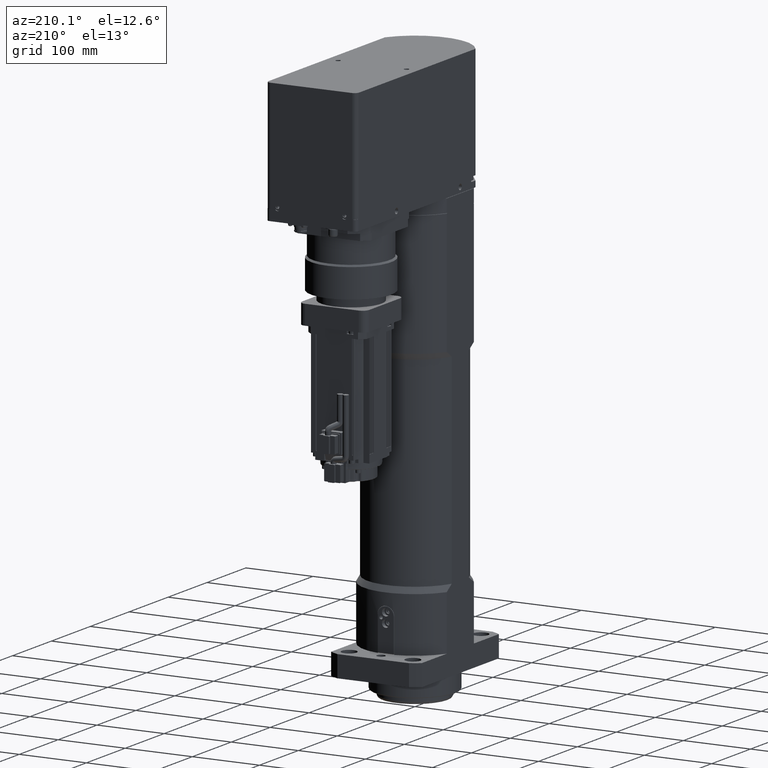
[diagram: clean part render]
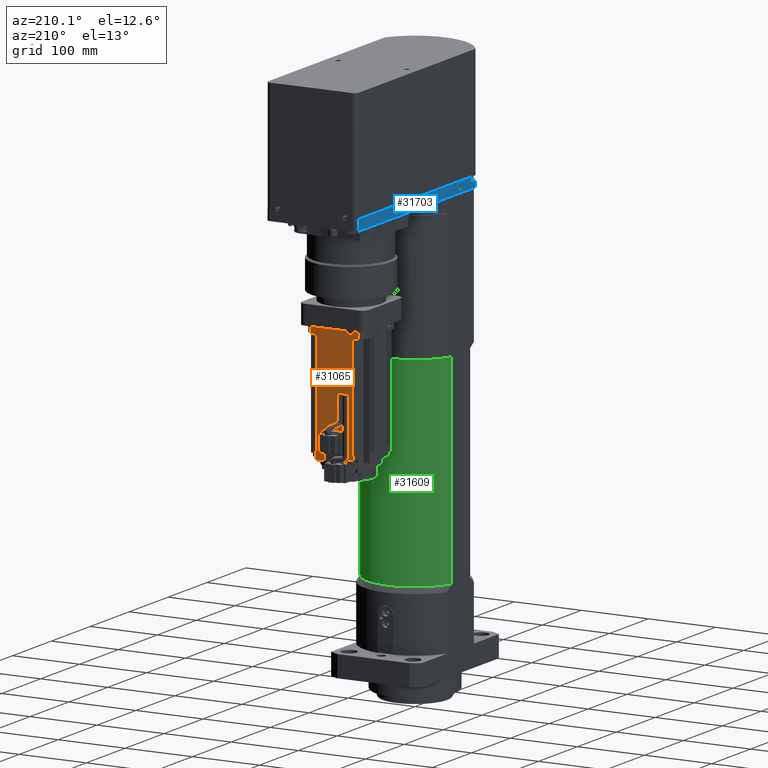
[diagram: same view with three faces highlighted in distinct colors, each labeled with its STEP entity id]
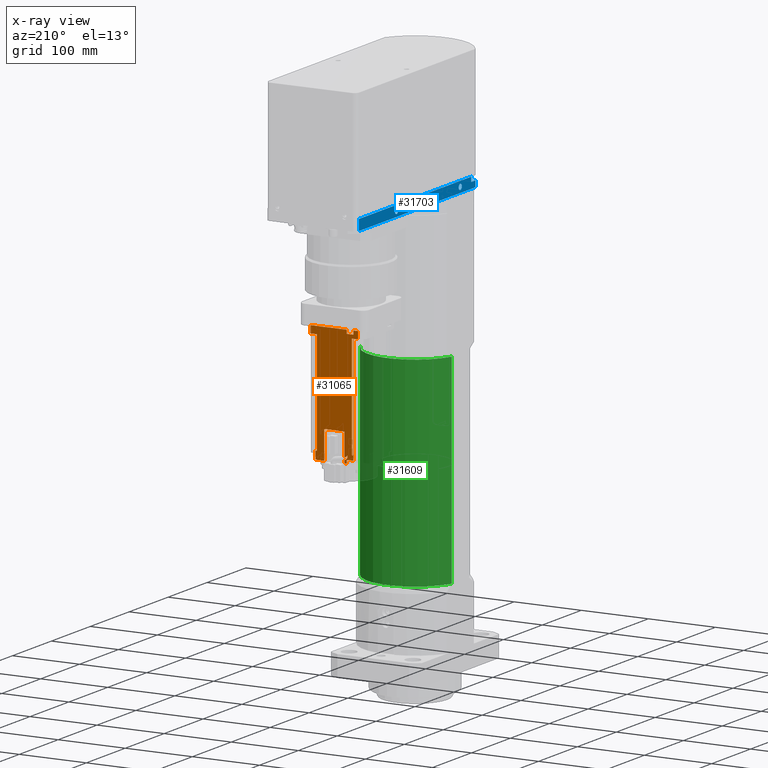
[diagram: x-ray of the same camera — body ghosted, the three highlighted faces saturated]
A machine part, auxiliary view with three faces highlighted in distinct colors.
The next image is the same camera in x-ray (body ghosted, the three faces saturated) — at least one of them is partly hidden behind the body in this view.
Their STEP definitions:

[orange] entity #31065 — the highlighted planar face has unit normal (-0, 1, -0).
#189=ELLIPSE('',#32938,31.9406149128375,4.);
#191=ELLIPSE('',#32940,31.9406149128375,4.);
#494=FACE_BOUND('',#9634,.T.);
#495=FACE_BOUND('',#9635,.T.);
#496=FACE_BOUND('',#9636,.T.);
#1019=PLANE('',#32954);
#2254=LINE('',#51590,#4882);
#2257=LINE('',#51601,#4885);
#2259=LINE('',#51604,#4887);
#2597=LINE('',#52501,#5225);
#2602=LINE('',#52516,#5230);
#2607=LINE('',#52531,#5235);
#2612=LINE('',#52546,#5240);
#2616=LINE('',#52554,#5244);
#2618=LINE('',#52557,#5246);
#2620=LINE('',#52561,#5248);
#2622=LINE('',#52564,#5250);
#2628=LINE('',#52645,#5256);
#2629=LINE('',#52647,#5257);
#2630=LINE('',#52649,#5258);
#2631=LINE('',#52651,#5259);
#2632=LINE('',#52653,#5260);
#2633=LINE('',#52655,#5261);
#2634=LINE('',#52657,#5262);
#2635=LINE('',#52661,#5263);
#2636=LINE('',#52665,#5264);
#2637=LINE('',#52669,#5265);
#2638=LINE('',#52673,#5266);
#2639=LINE('',#52674,#5267);
#2640=LINE('',#52675,#5268);
#2641=LINE('',#52677,#5269);
#2642=LINE('',#52679,#5270);
#2643=LINE('',#52681,#5271);
#2644=LINE('',#52683,#5272);
#2645=LINE('',#52685,#5273);
#2646=LINE('',#52687,#5274);
#2647=LINE('',#52689,#5275);
#2648=LINE('',#52690,#5276);
#2649=LINE('',#52691,#5277);
#4882=VECTOR('',#36352,10.);
#4885=VECTOR('',#36363,10.);
#4887=VECTOR('',#36367,10.);
#5225=VECTOR('',#37239,10.);
#5230=VECTOR('',#37252,10.);
#5235=VECTOR('',#37265,10.);
#5240=VECTOR('',#37278,10.);
#5244=VECTOR('',#37286,10.);
#5246=VECTOR('',#37290,10.);
#5248=VECTOR('',#37296,10.);
#5250=VECTOR('',#37300,10.);
#5256=VECTOR('',#37384,10.);
#5257=VECTOR('',#37385,10.);
#5258=VECTOR('',#37386,10.);
#5259=VECTOR('',#37387,10.);
#5260=VECTOR('',#37388,10.);
#5261=VECTOR('',#37389,10.);
#5262=VECTOR('',#37390,10.);
#5263=VECTOR('',#37393,10.);
#5264=VECTOR('',#37396,10.);
#5265=VECTOR('',#37399,10.);
#5266=VECTOR('',#37402,10.);
#5267=VECTOR('',#37403,10.);
#5268=VECTOR('',#37404,10.);
#5269=VECTOR('',#37405,10.);
#5270=VECTOR('',#37406,10.);
#5271=VECTOR('',#37407,10.);
#5272=VECTOR('',#37408,10.);
#5273=VECTOR('',#37409,10.);
#5274=VECTOR('',#37410,10.);
#5275=VECTOR('',#37411,10.);
#5276=VECTOR('',#37412,10.);
#5277=VECTOR('',#37413,10.);
#7866=FACE_OUTER_BOUND('',#9633,.T.);
#9633=EDGE_LOOP('',(#23000,#23001,#23002,#23003,#23004,#23005,#23006,#23007,
#23008,#23009,#23010,#23011,#23012,#23013,#23014,#23015,#23016,#23017,#23018,
#23019,#23020,#23021,#23022,#23023,#23024,#23025,#23026,#23027,#23028,#23029,
#23030,#23031,#23032));
#9634=EDGE_LOOP('',(#23033,#23034,#23035,#23036));
#9635=EDGE_LOOP('',(#23037,#23038,#23039,#23040));
#9636=EDGE_LOOP('',(#23041,#23042));
#10911=B_SPLINE_CURVE_WITH_KNOTS('',3,(#42578,#42579,#42580,#42581,#42582,
#42583,#42584,#42585,#42586,#42587,#42588,#42589),.UNSPECIFIED.,.F.,.F.,
(4,2,2,2,2,4),(1.19263499991973,1.24503714380853,1.35520784818935,1.48344915877361,
1.5595970402577,1.63574492174179),.UNSPECIFIED.);
#11213=B_SPLINE_CURVE_WITH_KNOTS('',3,(#52615,#52616,#52617,#52618,#52619,
#52620,#52621,#52622,#52623,#52624,#52625,#52626,#52627,#52628,#52629,#52630,
#52631,#52632),.UNSPECIFIED.,.F.,.F.,(4,2,2,2,2,2,2,2,4),(0.,0.0880148905567986,
0.176029781113597,0.273796558298388,0.371563335483179,0.479081764201681,
0.586600192920183,0.701484602093177,0.707399671797435),.UNSPECIFIED.);
#11805=CIRCLE('',#32955,1.);
#11806=CIRCLE('',#32956,1.);
#11807=CIRCLE('',#32957,1.);
#11808=CIRCLE('',#32958,1.);
#12595=VERTEX_POINT('',#42575);
#12596=VERTEX_POINT('',#42577);
#12599=VERTEX_POINT('',#42595);
#12602=VERTEX_POINT('',#42603);
#12603=VERTEX_POINT('',#42605);
#13407=VERTEX_POINT('',#51584);
#13409=VERTEX_POINT('',#51588);
#13412=VERTEX_POINT('',#51598);
#13413=VERTEX_POINT('',#51600);
#13702=VERTEX_POINT('',#52494);
#13705=VERTEX_POINT('',#52499);
#13708=VERTEX_POINT('',#52509);
#13711=VERTEX_POINT('',#52514);
#13714=VERTEX_POINT('',#52524);
#13717=VERTEX_POINT('',#52529);
#13720=VERTEX_POINT('',#52539);
#13723=VERTEX_POINT('',#52544);
#13734=VERTEX_POINT('',#52598);
#13735=VERTEX_POINT('',#52600);
#13736=VERTEX_POINT('',#52602);
#13743=VERTEX_POINT('',#52644);
#13744=VERTEX_POINT('',#52646);
#13745=VERTEX_POINT('',#52648);
#13746=VERTEX_POINT('',#52650);
#13747=VERTEX_POINT('',#52652);
#13748=VERTEX_POINT('',#52654);
#13749=VERTEX_POINT('',#52656);
#13750=VERTEX_POINT('',#52658);
#13751=VERTEX_POINT('',#52660);
#13752=VERTEX_POINT('',#52662);
#13753=VERTEX_POINT('',#52664);
#13754=VERTEX_POINT('',#52666);
#13755=VERTEX_POINT('',#52668);
#13756=VERTEX_POINT('',#52670);
#13757=VERTEX_POINT('',#52672);
#13758=VERTEX_POINT('',#52676);
#13759=VERTEX_POINT('',#52678);
#13760=VERTEX_POINT('',#52680);
#13761=VERTEX_POINT('',#52682);
#13762=VERTEX_POINT('',#52684);
#13763=VERTEX_POINT('',#52686);
#13764=VERTEX_POINT('',#52688);
#15486=EDGE_CURVE('',#12596,#12595,#10911,.T.);
#16653=EDGE_CURVE('',#13407,#13409,#2254,.T.);
#16658=EDGE_CURVE('',#13413,#13412,#2257,.T.);
#16660=EDGE_CURVE('',#13409,#13413,#2259,.T.);
#17096=EDGE_CURVE('',#13705,#13702,#2597,.T.);
#17103=EDGE_CURVE('',#13711,#13708,#2602,.T.);
#17110=EDGE_CURVE('',#13717,#13714,#2607,.T.);
#17117=EDGE_CURVE('',#13723,#13720,#2612,.T.);
#17121=EDGE_CURVE('',#13705,#13708,#2616,.T.);
#17123=EDGE_CURVE('',#13711,#13702,#2618,.T.);
#17125=EDGE_CURVE('',#13723,#13714,#2620,.T.);
#17127=EDGE_CURVE('',#13717,#13720,#2622,.T.);
#17144=EDGE_CURVE('',#13734,#12596,#189,.T.);
#17146=EDGE_CURVE('',#13736,#13735,#191,.T.);
#17153=EDGE_CURVE('',#12595,#13736,#11213,.T.);
#17159=EDGE_CURVE('',#13743,#13412,#2628,.T.);
#17160=EDGE_CURVE('',#13743,#13744,#2629,.T.);
#17161=EDGE_CURVE('',#13744,#13745,#2630,.T.);
#17162=EDGE_CURVE('',#13745,#13746,#2631,.T.);
#17163=EDGE_CURVE('',#13747,#13746,#2632,.T.);
#17164=EDGE_CURVE('',#13747,#13748,#2633,.T.);
#17165=EDGE_CURVE('',#13749,#13748,#2634,.T.);
#17166=EDGE_CURVE('',#13749,#13750,#11805,.T.);
#17167=EDGE_CURVE('',#13750,#13751,#2635,.T.);
#17168=EDGE_CURVE('',#13752,#13751,#11806,.F.);
#17169=EDGE_CURVE('',#13752,#13753,#2636,.T.);
#17170=EDGE_CURVE('',#13754,#13753,#11807,.F.);
#17171=EDGE_CURVE('',#13754,#13755,#2637,.T.);
#17172=EDGE_CURVE('',#13755,#13756,#11808,.T.);
#17173=EDGE_CURVE('',#13757,#13756,#2638,.T.);
#17174=EDGE_CURVE('',#13734,#13757,#2639,.T.);
#17175=EDGE_CURVE('',#12595,#12599,#2640,.T.);
#17176=EDGE_CURVE('',#13758,#13735,#2641,.T.);
#17177=EDGE_CURVE('',#13759,#13758,#2642,.T.);
#17178=EDGE_CURVE('',#13759,#13760,#2643,.T.);
#17179=EDGE_CURVE('',#13760,#13761,#2644,.T.);
#17180=EDGE_CURVE('',#13761,#13762,#2645,.T.);
#17181=EDGE_CURVE('',#13762,#13763,#2646,.T.);
#17182=EDGE_CURVE('',#13764,#13763,#2647,.T.);
#17183=EDGE_CURVE('',#13407,#13764,#2648,.T.);
#17184=EDGE_CURVE('',#12603,#12602,#2649,.T.);
#23000=ORIENTED_EDGE('',*,*,#16658,.T.);
#23001=ORIENTED_EDGE('',*,*,#17159,.F.);
#23002=ORIENTED_EDGE('',*,*,#17160,.T.);
#23003=ORIENTED_EDGE('',*,*,#17161,.T.);
#23004=ORIENTED_EDGE('',*,*,#17162,.T.);
#23005=ORIENTED_EDGE('',*,*,#17163,.F.);
#23006=ORIENTED_EDGE('',*,*,#17164,.T.);
#23007=ORIENTED_EDGE('',*,*,#17165,.F.);
#23008=ORIENTED_EDGE('',*,*,#17166,.T.);
#23009=ORIENTED_EDGE('',*,*,#17167,.T.);
#23010=ORIENTED_EDGE('',*,*,#17168,.F.);
#23011=ORIENTED_EDGE('',*,*,#17169,.T.);
#23012=ORIENTED_EDGE('',*,*,#17170,.F.);
#23013=ORIENTED_EDGE('',*,*,#17171,.T.);
#23014=ORIENTED_EDGE('',*,*,#17172,.T.);
#23015=ORIENTED_EDGE('',*,*,#17173,.F.);
#23016=ORIENTED_EDGE('',*,*,#17174,.F.);
#23017=ORIENTED_EDGE('',*,*,#17144,.T.);
#23018=ORIENTED_EDGE('',*,*,#15486,.T.);
#23019=ORIENTED_EDGE('',*,*,#17175,.T.);
#23020=ORIENTED_EDGE('',*,*,#17175,.F.);
#23021=ORIENTED_EDGE('',*,*,#17153,.T.);
#23022=ORIENTED_EDGE('',*,*,#17146,.T.);
#23023=ORIENTED_EDGE('',*,*,#17176,.F.);
#23024=ORIENTED_EDGE('',*,*,#17177,.F.);
#23025=ORIENTED_EDGE('',*,*,#17178,.T.);
#23026=ORIENTED_EDGE('',*,*,#17179,.T.);
#23027=ORIENTED_EDGE('',*,*,#17180,.T.);
#23028=ORIENTED_EDGE('',*,*,#17181,.T.);
#23029=ORIENTED_EDGE('',*,*,#17182,.F.);
#23030=ORIENTED_EDGE('',*,*,#17183,.F.);
#23031=ORIENTED_EDGE('',*,*,#16653,.T.);
#23032=ORIENTED_EDGE('',*,*,#16660,.T.);
#23033=ORIENTED_EDGE('',*,*,#17121,.T.);
#23034=ORIENTED_EDGE('',*,*,#17103,.F.);
#23035=ORIENTED_EDGE('',*,*,#17123,.T.);
#23036=ORIENTED_EDGE('',*,*,#17096,.F.);
#23037=ORIENTED_EDGE('',*,*,#17127,.T.);
#23038=ORIENTED_EDGE('',*,*,#17117,.F.);
#23039=ORIENTED_EDGE('',*,*,#17125,.T.);
#23040=ORIENTED_EDGE('',*,*,#17110,.F.);
#23041=ORIENTED_EDGE('',*,*,#17184,.T.);
#23042=ORIENTED_EDGE('',*,*,#17184,.F.);
#31065=ADVANCED_FACE('',(#7866,#494,#495,#496),#1019,.T.);
#32938=AXIS2_PLACEMENT_3D('',#52599,#37348,#37349);
#32940=AXIS2_PLACEMENT_3D('',#52603,#37352,#37353);
#32954=AXIS2_PLACEMENT_3D('',#52643,#37382,#37383);
#32955=AXIS2_PLACEMENT_3D('',#52659,#37391,#37392);
#32956=AXIS2_PLACEMENT_3D('',#52663,#37394,#37395);
#32957=AXIS2_PLACEMENT_3D('',#52667,#37397,#37398);
#32958=AXIS2_PLACEMENT_3D('',#52671,#37400,#37401);
#36352=DIRECTION('',(-3.6975655217387E-18,-5.0752191982747E-16,-1.));
#36363=DIRECTION('',(3.6975655217387E-18,5.0752191982747E-16,1.));
#36367=DIRECTION('',(1.,1.22124532708767E-15,-3.69756552173932E-18));
#37239=DIRECTION('',(-3.49741105664645E-16,-5.0752191982747E-16,-1.));
#37252=DIRECTION('',(2.34393258950343E-16,5.0752191982747E-16,1.));
#37265=DIRECTION('',(-6.13714888788897E-17,-5.0752191982747E-16,-1.));
#37278=DIRECTION('',(1.91137816432479E-16,5.0752191982747E-16,1.));
#37286=DIRECTION('',(-1.,-1.22124532708767E-15,3.69756552173932E-18));
#37290=DIRECTION('',(1.,1.22124532708767E-15,-3.69756552173932E-18));
#37296=DIRECTION('',(1.,1.22124532708767E-15,-3.69756552173932E-18));
#37300=DIRECTION('',(-1.,-1.22124532708767E-15,3.69756552173932E-18));
#37348=DIRECTION('center_axis',(1.22124532708767E-15,-1.,5.0752191982747E-16));
#37349=DIRECTION('ref_axis',(-0.984563797115537,-1.11356436324824E-15,0.175026082083318));
#37352=DIRECTION('center_axis',(1.22124532708767E-15,-1.,5.0752191982747E-16));
#37353=DIRECTION('ref_axis',(-0.984563797115537,-1.11356436324824E-15,0.175026082083318));
#37382=DIRECTION('center_axis',(-1.22124532708767E-15,1.,-5.0752191982747E-16));
#37383=DIRECTION('ref_axis',(1.,1.22124532708767E-15,-3.69756552173932E-18));
#37384=DIRECTION('',(-1.,-1.22124532708767E-15,4.40599034905589E-33));
#37385=DIRECTION('',(-3.6975655217387E-18,-5.0752191982747E-16,-1.));
#37386=DIRECTION('',(-1.,-1.22124532708767E-15,3.69756552173932E-18));
#37387=DIRECTION('',(-3.6975655217387E-18,-5.0752191982747E-16,-1.));
#37388=DIRECTION('',(1.,1.22124532708767E-15,-3.69756552173932E-18));
#37389=DIRECTION('',(3.6975655217387E-18,5.0752191982747E-16,1.));
#37390=DIRECTION('',(1.,1.22124532708767E-15,-3.69756552173932E-18));
#37391=DIRECTION('center_axis',(1.22124532708767E-15,-1.,5.0752191982747E-16));
#37392=DIRECTION('ref_axis',(0.707106781186543,5.04678661165249E-16,-0.707106781186552));
#37393=DIRECTION('',(3.6975655217387E-18,5.0752191982747E-16,1.));
#37394=DIRECTION('center_axis',(1.22124532708767E-15,-1.,5.0752191982747E-16));
#37395=DIRECTION('ref_axis',(0.707106781186543,1.22242304338689E-15,0.707106781186552));
#37396=DIRECTION('',(-1.,-1.22124532708767E-15,3.69756552173932E-18));
#37397=DIRECTION('center_axis',(1.22124532708767E-15,-1.,5.0752191982747E-16));
#37398=DIRECTION('ref_axis',(-0.707106781186555,-5.0467866116527E-16,0.70710678118654));
#37399=DIRECTION('',(-3.6975655217387E-18,-5.0752191982747E-16,-1.));
#37400=DIRECTION('center_axis',(1.22124532708767E-15,-1.,5.0752191982747E-16));
#37401=DIRECTION('ref_axis',(-0.707106781186543,-1.22242304338689E-15,-0.707106781186552));
#37402=DIRECTION('',(1.,1.22124532708767E-15,-3.69756552173932E-18));
#37403=DIRECTION('',(3.6975655217387E-18,5.0752191982747E-16,1.));
#37404=DIRECTION('',(-1.81339605249121E-16,4.93644132019655E-16,1.));
#37405=DIRECTION('',(3.6975655217387E-18,5.0752191982747E-16,1.));
#37406=DIRECTION('',(1.,1.22124532708767E-15,-3.69756552173932E-18));
#37407=DIRECTION('',(3.6975655217387E-18,5.0752191982747E-16,1.));
#37408=DIRECTION('',(-1.,-1.22124532708767E-15,3.69756552173932E-18));
#37409=DIRECTION('',(3.6975655217387E-18,5.0752191982747E-16,1.));
#37410=DIRECTION('',(-1.,-1.22124532708767E-15,3.69756552173932E-18));
#37411=DIRECTION('',(-3.6975655217387E-18,-5.0752191982747E-16,-1.));
#37412=DIRECTION('',(-1.,-1.22124532708767E-15,4.40599034905589E-33));
#37413=DIRECTION('',(2.2574217044677E-16,2.02210588055553E-16,1.));
#42575=CARTESIAN_POINT('',(-19.4999999999999,207.500000000001,322.01841516383));
#42577=CARTESIAN_POINT('',(-15.9290661427965,207.500000000001,319.469747254434));
#42578=CARTESIAN_POINT('Ctrl Pts',(-15.9290661427965,207.500000000001,319.469747254434));
#42579=CARTESIAN_POINT('Ctrl Pts',(-16.1194849693922,207.500000000001,319.457868810944));
#42580=CARTESIAN_POINT('Ctrl Pts',(-16.3128356612516,207.500000000001,319.464864778397));
#42581=CARTESIAN_POINT('Ctrl Pts',(-16.8511160293875,207.500000000001,319.527475841464));
#42582=CARTESIAN_POINT('Ctrl Pts',(-17.2725198156159,207.500000000001,319.656395175206));
#42583=CARTESIAN_POINT('Ctrl Pts',(-17.9833269478442,207.500000000001,320.011799151131));
#42584=CARTESIAN_POINT('Ctrl Pts',(-18.3899995321538,207.500000000001,320.324450312998));
#42585=CARTESIAN_POINT('Ctrl Pts',(-18.8489897598896,207.500000000001,320.82793218082));
#42586=CARTESIAN_POINT('Ctrl Pts',(-19.0159614894133,207.500000000001,321.050495885969));
#42587=CARTESIAN_POINT('Ctrl Pts',(-19.2987244799724,207.500000000001,321.526255524562));
#42588=CARTESIAN_POINT('Ctrl Pts',(-19.4146619059347,207.500000000001,321.779364571146));
#42589=CARTESIAN_POINT('Ctrl Pts',(-19.4999999999999,207.500000000001,322.01841516383));
#42595=CARTESIAN_POINT('',(-19.4999999999999,207.500000000001,403.));
#42603=CARTESIAN_POINT('',(-10.9999999999999,207.500000000001,403.));
#42605=CARTESIAN_POINT('',(-10.9999999999999,207.500000000001,367.226873989828));
#51584=CARTESIAN_POINT('',(-28.5,207.500000000001,488.));
#51588=CARTESIAN_POINT('',(-28.5,207.500000000001,482.5));
#51590=CARTESIAN_POINT('',(-28.5,207.500000000001,488.));
#51598=CARTESIAN_POINT('',(-18.5,207.500000000001,488.));
#51600=CARTESIAN_POINT('',(-18.5,207.500000000001,482.5));
#51601=CARTESIAN_POINT('',(-18.5,207.500000000001,488.));
#51604=CARTESIAN_POINT('',(-29.3834199745824,207.500000000001,482.5));
#52494=CARTESIAN_POINT('',(27.7999999999999,207.500000000001,323.));
#52499=CARTESIAN_POINT('',(27.8,207.500000000001,477.));
#52501=CARTESIAN_POINT('',(27.8,207.500000000001,405.5));
#52509=CARTESIAN_POINT('',(26.2,207.500000000001,477.));
#52514=CARTESIAN_POINT('',(26.2,207.500000000001,323.));
#52516=CARTESIAN_POINT('',(26.2,207.500000000001,482.5));
#52524=CARTESIAN_POINT('',(-26.2,207.500000000001,323.));
#52529=CARTESIAN_POINT('',(-26.2,207.500000000001,477.));
#52531=CARTESIAN_POINT('',(-26.2,207.500000000001,405.5));
#52539=CARTESIAN_POINT('',(-27.8,207.500000000001,477.));
#52544=CARTESIAN_POINT('',(-27.8,207.500000000001,323.));
#52546=CARTESIAN_POINT('',(-27.8,207.500000000001,482.5));
#52554=CARTESIAN_POINT('',(-3.88341997458236,207.500000000001,477.));
#52557=CARTESIAN_POINT('',(-4.38341997458238,207.500000000001,323.));
#52561=CARTESIAN_POINT('',(-31.3834199745824,207.500000000001,323.));
#52564=CARTESIAN_POINT('',(-30.8834199745824,207.500000000001,477.));
#52598=CARTESIAN_POINT('',(-15.,207.500000000001,319.51308617736));
#52599=CARTESIAN_POINT('Origin',(11.6999999999997,207.500000000001,312.696037250357));
#52600=CARTESIAN_POINT('',(-15.,207.500000000001,315.218407978185));
#52602=CARTESIAN_POINT('',(-16.57083163283,207.500000000001,315.859662059107));
#52603=CARTESIAN_POINT('Origin',(11.6999999999997,207.500000000001,312.696037250357));
#52615=CARTESIAN_POINT('Ctrl Pts',(-19.4999999999999,207.500000000001,322.01841516383));
#52616=CARTESIAN_POINT('Ctrl Pts',(-19.5986373207379,207.500000000001,321.742110539951));
#52617=CARTESIAN_POINT('Ctrl Pts',(-19.6758497435552,207.500000000001,321.430112915903));
#52618=CARTESIAN_POINT('Ctrl Pts',(-19.7586019323076,207.500000000001,320.796395260153));
#52619=CARTESIAN_POINT('Ctrl Pts',(-19.7643194165959,207.500000000001,320.474698447961));
#52620=CARTESIAN_POINT('Ctrl Pts',(-19.7187664448801,207.500000000001,319.857103907488));
#52621=CARTESIAN_POINT('Ctrl Pts',(-19.6565111918375,207.500000000001,319.505562926837));
#52622=CARTESIAN_POINT('Ctrl Pts',(-19.4536784269623,207.500000000001,318.825501239917));
#52623=CARTESIAN_POINT('Ctrl Pts',(-19.3132304292346,207.500000000001,318.496941911949));
#52624=CARTESIAN_POINT('Ctrl Pts',(-18.9867761906889,207.500000000001,317.895549985065));
#52625=CARTESIAN_POINT('Ctrl Pts',(-18.7650497992168,207.500000000001,317.571565587286));
#52626=CARTESIAN_POINT('Ctrl Pts',(-18.252662428232,207.500000000001,316.983201563526));
#52627=CARTESIAN_POINT('Ctrl Pts',(-17.9621003103852,207.500000000001,316.718735849389));
#52628=CARTESIAN_POINT('Ctrl Pts',(-17.3688814381316,207.500000000001,316.274123089458));
#52629=CARTESIAN_POINT('Ctrl Pts',(-17.0093257723278,207.500000000001,316.057968326033));
#52630=CARTESIAN_POINT('Ctrl Pts',(-16.6100771515055,207.500000000001,315.877046542367));
#52631=CARTESIAN_POINT('Ctrl Pts',(-16.5904769616716,207.500000000001,315.868297974594));
#52632=CARTESIAN_POINT('Ctrl Pts',(-16.57083163283,207.500000000001,315.859662059107));
#52643=CARTESIAN_POINT('Origin',(-35.2668399491647,207.500000000001,488.));
#52644=CARTESIAN_POINT('',(35.2668399491647,207.500000000001,488.));
#52645=CARTESIAN_POINT('',(-17.6334199745824,207.500000000001,488.));
#52646=CARTESIAN_POINT('',(35.2668399491647,207.500000000001,477.));
#52647=CARTESIAN_POINT('',(35.2668399491647,207.500000000001,488.));
#52648=CARTESIAN_POINT('',(28.5,207.500000000001,477.));
#52649=CARTESIAN_POINT('',(0.366580025417631,207.500000000001,477.));
#52650=CARTESIAN_POINT('',(28.5,207.500000000001,311.));
#52651=CARTESIAN_POINT('',(28.5,207.500000000001,399.5));
#52652=CARTESIAN_POINT('',(15.,207.500000000001,311.));
#52653=CARTESIAN_POINT('',(-28.5,207.500000000001,311.));
#52654=CARTESIAN_POINT('',(15.,207.500000000001,323.));
#52655=CARTESIAN_POINT('',(15.,207.500000000001,311.));
#52656=CARTESIAN_POINT('',(14.,207.500000000001,323.));
#52657=CARTESIAN_POINT('',(-17.6334199745824,207.500000000001,323.));
#52658=CARTESIAN_POINT('',(15.,207.500000000001,324.));
#52659=CARTESIAN_POINT('Origin',(14.,207.500000000001,324.));
#52660=CARTESIAN_POINT('',(15.,207.500000000001,352.));
#52661=CARTESIAN_POINT('',(15.,207.500000000001,420.5));
#52662=CARTESIAN_POINT('',(14.,207.500000000001,353.));
#52663=CARTESIAN_POINT('Origin',(14.,207.500000000001,352.));
#52664=CARTESIAN_POINT('',(-14.,207.500000000001,353.));
#52665=CARTESIAN_POINT('',(-25.1334199745824,207.500000000001,353.));
#52666=CARTESIAN_POINT('',(-15.,207.500000000001,352.));
#52667=CARTESIAN_POINT('Origin',(-14.,207.500000000001,352.));
#52668=CARTESIAN_POINT('',(-15.,207.500000000001,324.));
#52669=CARTESIAN_POINT('',(-15.,207.500000000001,405.5));
#52670=CARTESIAN_POINT('',(-14.,207.500000000001,323.));
#52671=CARTESIAN_POINT('Origin',(-14.,207.500000000001,324.));
#52672=CARTESIAN_POINT('',(-15.,207.500000000001,323.));
#52673=CARTESIAN_POINT('',(-17.6334199745824,207.500000000001,323.));
#52674=CARTESIAN_POINT('',(-15.,207.500000000001,311.));
#52675=CARTESIAN_POINT('',(-19.4999999999999,207.500000000001,322.018415163831));
#52676=CARTESIAN_POINT('',(-15.,207.500000000001,311.));
#52677=CARTESIAN_POINT('',(-15.,207.500000000001,311.));
#52678=CARTESIAN_POINT('',(-18.5,207.500000000001,311.));
#52679=CARTESIAN_POINT('',(-28.5,207.500000000001,311.));
#52680=CARTESIAN_POINT('',(-18.5,207.500000000001,316.));
#52681=CARTESIAN_POINT('',(-18.5,207.500000000001,399.5));
#52682=CARTESIAN_POINT('',(-28.5,207.500000000001,316.));
#52683=CARTESIAN_POINT('',(-29.7698695683692,207.500000000001,316.));
#52684=CARTESIAN_POINT('',(-28.5,207.500000000001,477.));
#52685=CARTESIAN_POINT('',(-28.5,207.500000000001,399.5));
#52686=CARTESIAN_POINT('',(-35.2668399491647,207.500000000001,477.));
#52687=CARTESIAN_POINT('',(-35.6334199745824,207.500000000001,477.));
#52688=CARTESIAN_POINT('',(-35.2668399491647,207.500000000001,488.));
#52689=CARTESIAN_POINT('',(-35.2668399491647,207.500000000001,488.));
#52690=CARTESIAN_POINT('',(-17.6334199745824,207.500000000001,488.));
#52691=CARTESIAN_POINT('',(-10.9999999999999,207.500000000001,367.226873989828));

[blue] entity #31703 — the highlighted planar face has unit normal (-1, 0, 0).
#605=FACE_BOUND('',#10383,.T.);
#606=FACE_BOUND('',#10384,.T.);
#1326=PLANE('',#34163);
#2128=LINE('',#51237,#4756);
#3537=LINE('',#57338,#6165);
#3538=LINE('',#57341,#6166);
#3550=LINE('',#57376,#6178);
#3551=LINE('',#57377,#6179);
#3552=LINE('',#57379,#6180);
#3553=LINE('',#57380,#6181);
#4756=VECTOR('',#36022,10.);
#6165=VECTOR('',#40679,10.);
#6166=VECTOR('',#40682,10.);
#6178=VECTOR('',#40724,10.);
#6179=VECTOR('',#40725,10.);
#6180=VECTOR('',#40726,10.);
#6181=VECTOR('',#40727,10.);
#8504=FACE_OUTER_BOUND('',#10382,.T.);
#10382=EDGE_LOOP('',(#26429,#26430,#26431,#26432,#26433,#26434,#26435));
#10383=EDGE_LOOP('',(#26436));
#10384=EDGE_LOOP('',(#26437));
#12351=CIRCLE('',#34104,4.188);
#12353=CIRCLE('',#34108,4.188);
#13283=VERTEX_POINT('',#51234);
#13284=VERTEX_POINT('',#51236);
#14775=VERTEX_POINT('',#57214);
#14777=VERTEX_POINT('',#57222);
#14807=VERTEX_POINT('',#57334);
#14808=VERTEX_POINT('',#57336);
#14809=VERTEX_POINT('',#57340);
#14817=VERTEX_POINT('',#57375);
#14818=VERTEX_POINT('',#57378);
#16482=EDGE_CURVE('',#13284,#13283,#2128,.T.);
#18743=EDGE_CURVE('',#14775,#14775,#12351,.T.);
#18747=EDGE_CURVE('',#14777,#14777,#12353,.T.);
#18806=EDGE_CURVE('',#14807,#14808,#3537,.T.);
#18807=EDGE_CURVE('',#13284,#14809,#3538,.T.);
#18825=EDGE_CURVE('',#13283,#14817,#3550,.T.);
#18826=EDGE_CURVE('',#14807,#14817,#3551,.T.);
#18827=EDGE_CURVE('',#14818,#14808,#3552,.T.);
#18828=EDGE_CURVE('',#14809,#14818,#3553,.T.);
#26429=ORIENTED_EDGE('',*,*,#16482,.T.);
#26430=ORIENTED_EDGE('',*,*,#18825,.T.);
#26431=ORIENTED_EDGE('',*,*,#18826,.F.);
#26432=ORIENTED_EDGE('',*,*,#18806,.T.);
#26433=ORIENTED_EDGE('',*,*,#18827,.F.);
#26434=ORIENTED_EDGE('',*,*,#18828,.F.);
#26435=ORIENTED_EDGE('',*,*,#18807,.F.);
#26436=ORIENTED_EDGE('',*,*,#18743,.T.);
#26437=ORIENTED_EDGE('',*,*,#18747,.T.);
#31703=ADVANCED_FACE('',(#8504,#605,#606),#1326,.T.);
#34104=AXIS2_PLACEMENT_3D('',#57215,#40545,#40546);
#34108=AXIS2_PLACEMENT_3D('',#57223,#40555,#40556);
#34163=AXIS2_PLACEMENT_3D('',#57374,#40722,#40723);
#36022=DIRECTION('',(0.,-1.,0.));
#40545=DIRECTION('center_axis',(1.,0.,0.));
#40546=DIRECTION('ref_axis',(0.,-1.,0.));
#40555=DIRECTION('center_axis',(1.,0.,0.));
#40556=DIRECTION('ref_axis',(0.,-1.,0.));
#40679=DIRECTION('',(0.,0.,1.));
#40682=DIRECTION('',(0.,0.,1.));
#40722=DIRECTION('center_axis',(-1.,0.,0.));
#40723=DIRECTION('ref_axis',(0.,-1.,0.));
#40724=DIRECTION('',(0.,0.,1.));
#40725=DIRECTION('',(0.,-1.,0.));
#40726=DIRECTION('',(0.,-1.,0.));
#40727=DIRECTION('',(0.,-1.,0.));
#51234=CARTESIAN_POINT('',(-67.5,-39.0864426624139,634.));
#51236=CARTESIAN_POINT('',(-67.5,261.,634.));
#51237=CARTESIAN_POINT('',(-67.5,261.,634.));
#57214=CARTESIAN_POINT('',(-67.5,168.188,642.));
#57215=CARTESIAN_POINT('Origin',(-67.5,164.,642.));
#57222=CARTESIAN_POINT('',(-67.5,4.18799999999986,642.));
#57223=CARTESIAN_POINT('Origin',(-67.5,-1.4210854715202E-13,642.));
#57334=CARTESIAN_POINT('',(-67.5,-28.142833017344,643.));
#57336=CARTESIAN_POINT('',(-67.5,-28.142833017344,650.));
#57338=CARTESIAN_POINT('',(-67.5,-28.142833017344,634.));
#57340=CARTESIAN_POINT('',(-67.5,261.,650.));
#57341=CARTESIAN_POINT('',(-67.5,261.,634.));
#57374=CARTESIAN_POINT('Origin',(-67.5,-28.142833017344,634.));
#57375=CARTESIAN_POINT('',(-67.5,-39.0864426624139,643.));
#57376=CARTESIAN_POINT('',(-67.5,-39.0864426624139,634.));
#57377=CARTESIAN_POINT('',(-67.5,261.,643.));
#57378=CARTESIAN_POINT('',(-67.5000000000001,260.4,650.));
#57379=CARTESIAN_POINT('',(-67.5,261.,650.));
#57380=CARTESIAN_POINT('',(-67.5,261.,650.));

[green] entity #31609 — the highlighted cylindrical surface (partial cylindrical patch) has radius 71 mm, axis along (0, 0, 1).
#3358=LINE('',#56388,#5986);
#3429=LINE('',#56971,#6057);
#5986=VECTOR('',#40022,10.);
#6057=VECTOR('',#40263,10.);
#7071=CYLINDRICAL_SURFACE('',#33995,71.);
#8410=FACE_OUTER_BOUND('',#10267,.T.);
#10267=EDGE_LOOP('',(#26001,#26002,#26003,#26004));
#12267=CIRCLE('',#33924,71.);
#12274=CIRCLE('',#33935,71.);
#14610=VERTEX_POINT('',#56383);
#14611=VERTEX_POINT('',#56387);
#14635=VERTEX_POINT('',#56524);
#14649=VERTEX_POINT('',#56585);
#18488=EDGE_CURVE('',#14611,#14610,#3358,.T.);
#18523=EDGE_CURVE('',#14635,#14610,#12267,.T.);
#18541=EDGE_CURVE('',#14611,#14649,#12274,.T.);
#18630=EDGE_CURVE('',#14635,#14649,#3429,.T.);
#26001=ORIENTED_EDGE('',*,*,#18630,.T.);
#26002=ORIENTED_EDGE('',*,*,#18541,.F.);
#26003=ORIENTED_EDGE('',*,*,#18488,.T.);
#26004=ORIENTED_EDGE('',*,*,#18523,.F.);
#31609=ADVANCED_FACE('',(#8410),#7071,.T.);
#33924=AXIS2_PLACEMENT_3D('',#56528,#40067,#40068);
#33935=AXIS2_PLACEMENT_3D('',#56586,#40096,#40097);
#33995=AXIS2_PLACEMENT_3D('',#56975,#40268,#40269);
#40022=DIRECTION('',(0.,0.,-1.));
#40067=DIRECTION('center_axis',(0.,0.,-1.));
#40068=DIRECTION('ref_axis',(1.,0.,0.));
#40096=DIRECTION('center_axis',(0.,0.,1.));
#40097=DIRECTION('ref_axis',(1.,0.,0.));
#40263=DIRECTION('',(0.,0.,1.));
#40268=DIRECTION('center_axis',(0.,0.,1.));
#40269=DIRECTION('ref_axis',(1.,0.,0.));
#56383=CARTESIAN_POINT('',(67.5,22.017038856304,122.));
#56387=CARTESIAN_POINT('',(67.5,22.017038856304,422.));
#56388=CARTESIAN_POINT('',(67.5,22.017038856304,122.));
#56524=CARTESIAN_POINT('',(-67.5,22.0170388563039,122.));
#56528=CARTESIAN_POINT('Origin',(0.,0.,122.));
#56585=CARTESIAN_POINT('',(-67.5,22.0170388563039,422.));
#56586=CARTESIAN_POINT('Origin',(0.,0.,422.));
#56971=CARTESIAN_POINT('',(-67.5,22.0170388563039,122.));
#56975=CARTESIAN_POINT('Origin',(0.,0.,122.));